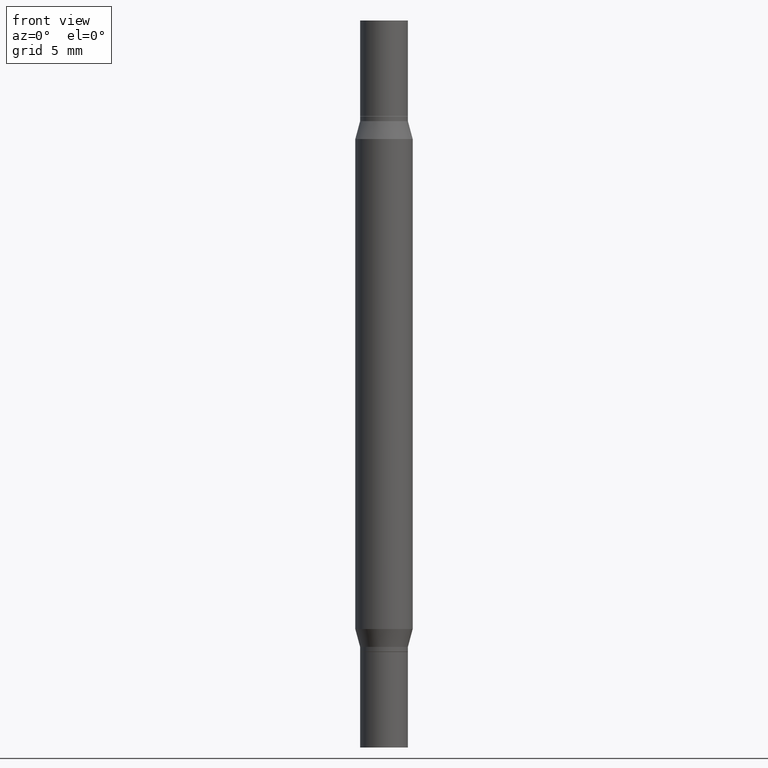
[diagram: clean part render]
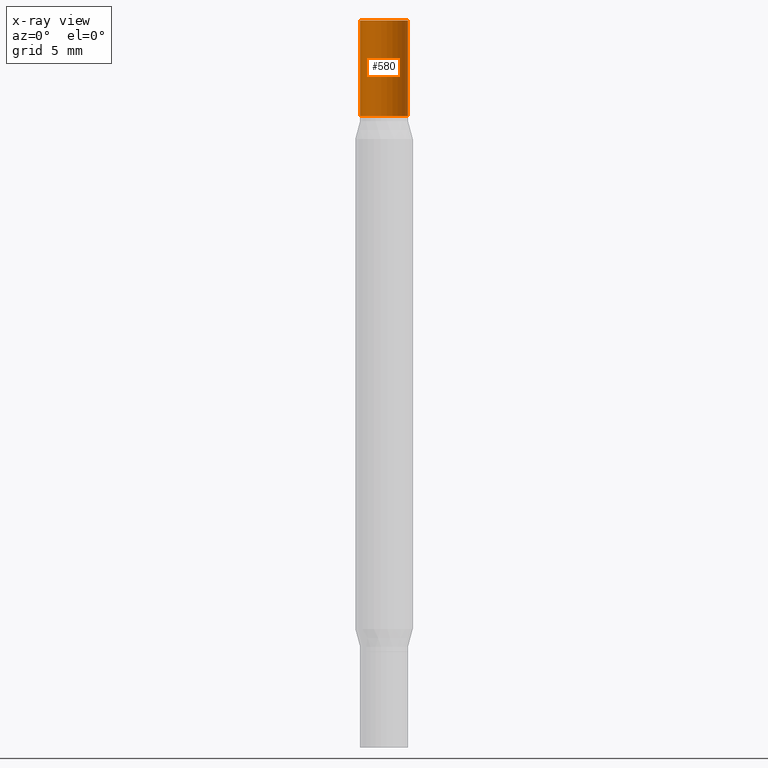
[diagram: x-ray — body ghosted, one internal face saturated and labeled with its STEP entity id]
A machine part, front view, then the same camera in x-ray: the body is ghosted and one INTERNAL B-rep face — a face not visible from any outside direction — is saturated and labeled: STEP entity #580.
In plain terms, the highlighted cylindrical surface (edge-blend (fillet) strip) has radius 1.2497 mm, axis along (-0, -0, -1).
Its self-contained STEP definition (entity closure, byte-faithful):
#96 = CARTESIAN_POINT ( 'NONE',  ( -0.04920000000000000068, -4.886310915316924225E-15, -1.496099999999999985 ) ) ;
#188 = VERTEX_POINT ( 'NONE', #291 ) ;
#200 = LINE ( 'NONE', #874, #801 ) ;
#201 = ORIENTED_EDGE ( 'NONE', *, *, #555, .T. ) ;
#243 = LINE ( 'NONE', #96, #331 ) ;
#269 = EDGE_CURVE ( 'NONE', #740, #948, #200, .T. ) ;
#289 = DIRECTION ( 'NONE',  ( 1.000000000000000000, -6.982962677686261977E-15, 0.000000000000000000 ) ) ;
#291 = CARTESIAN_POINT ( 'NONE',  ( -0.04920000000000000068, -5.989524344509276303E-18, -0.1969000000000000195 ) ) ;
#331 = VECTOR ( 'NONE', #767, 39.37007874015748143 ) ;
#365 = AXIS2_PLACEMENT_3D ( 'NONE', #371, #969, #289 ) ;
#371 = CARTESIAN_POINT ( 'NONE',  ( 0.000000000000000000, -5.223847416807283040E-15, -1.496099999999999985 ) ) ;
#415 = CIRCLE ( 'NONE', #814, 0.04920000000000000068 ) ;
#451 = CIRCLE ( 'NONE', #890, 0.04920000000000000068 ) ;
#470 = ORIENTED_EDGE ( 'NONE', *, *, #732, .F. ) ;
#555 = EDGE_CURVE ( 'NONE', #948, #188, #415, .T. ) ;
#580 = ADVANCED_FACE ( 'NONE', ( #746 ), #758, .T. ) ;
#612 = CARTESIAN_POINT ( 'NONE',  ( 0.04920000000000000068, -3.433195779781105028E-16, 1.112302229232114997E-34 ) ) ;
#658 = DIRECTION ( 'NONE',  ( 2.445468806185136597E-29, 3.491805094961124077E-15, 1.000000000000000000 ) ) ;
#664 = ORIENTED_EDGE ( 'NONE', *, *, #764, .F. ) ;
#677 = DIRECTION ( 'NONE',  ( 1.000000000000000000, -6.982962677686266711E-15, 2.260776888683160490E-33 ) ) ;
#693 = CARTESIAN_POINT ( 'NONE',  ( 3.658665880933582389E-29, 2.421857640538043390E-19, 0.000000000000000000 ) ) ;
#732 = EDGE_CURVE ( 'NONE', #777, #188, #243, .T. ) ;
#740 = VERTEX_POINT ( 'NONE', #612 ) ;
#741 = CARTESIAN_POINT ( 'NONE',  ( 3.177153072995728757E-29, -6.872942374337910995E-16, -0.1969000000000000195 ) ) ;
#745 = EDGE_LOOP ( 'NONE', ( #470, #664, #877, #201 ) ) ;
#746 = FACE_OUTER_BOUND ( 'NONE', #745, .T. ) ;
#758 = CYLINDRICAL_SURFACE ( 'NONE', #365, 0.04920000000000000068 ) ;
#764 = EDGE_CURVE ( 'NONE', #740, #777, #451, .T. ) ;
#767 = DIRECTION ( 'NONE',  ( -2.445468806185136877E-29, -3.491805094961123683E-15, -1.000000000000000000 ) ) ;
#772 = CARTESIAN_POINT ( 'NONE',  ( -0.04920000000000000068, -5.989524344509276303E-18, 1.224930569750488453E-30 ) ) ;
#777 = VERTEX_POINT ( 'NONE', #772 ) ;
#801 = VECTOR ( 'NONE', #949, 39.37007874015748143 ) ;
#814 = AXIS2_PLACEMENT_3D ( 'NONE', #741, #658, #961 ) ;
#874 = CARTESIAN_POINT ( 'NONE',  ( 0.04920000000000000068, -5.567409180549447565E-15, -1.496099999999999985 ) ) ;
#877 = ORIENTED_EDGE ( 'NONE', *, *, #269, .T. ) ;
#890 = AXIS2_PLACEMENT_3D ( 'NONE', #693, #918, #677 ) ;
#918 = DIRECTION ( 'NONE',  ( 2.445468806185136597E-29, 3.491805094961124077E-15, 1.000000000000000000 ) ) ;
#948 = VERTEX_POINT ( 'NONE', #959 ) ;
#949 = DIRECTION ( 'NONE',  ( -2.445468806185136877E-29, -3.491805094961123683E-15, -1.000000000000000000 ) ) ;
#959 = CARTESIAN_POINT ( 'NONE',  ( 0.04920000000000000068, -1.030856001175955426E-15, -0.1969000000000000195 ) ) ;
#961 = DIRECTION ( 'NONE',  ( 1.000000000000000000, -6.982962677686266711E-15, 0.000000000000000000 ) ) ;
#969 = DIRECTION ( 'NONE',  ( -2.445468806185136597E-29, -3.491805094961124077E-15, -1.000000000000000000 ) ) ;